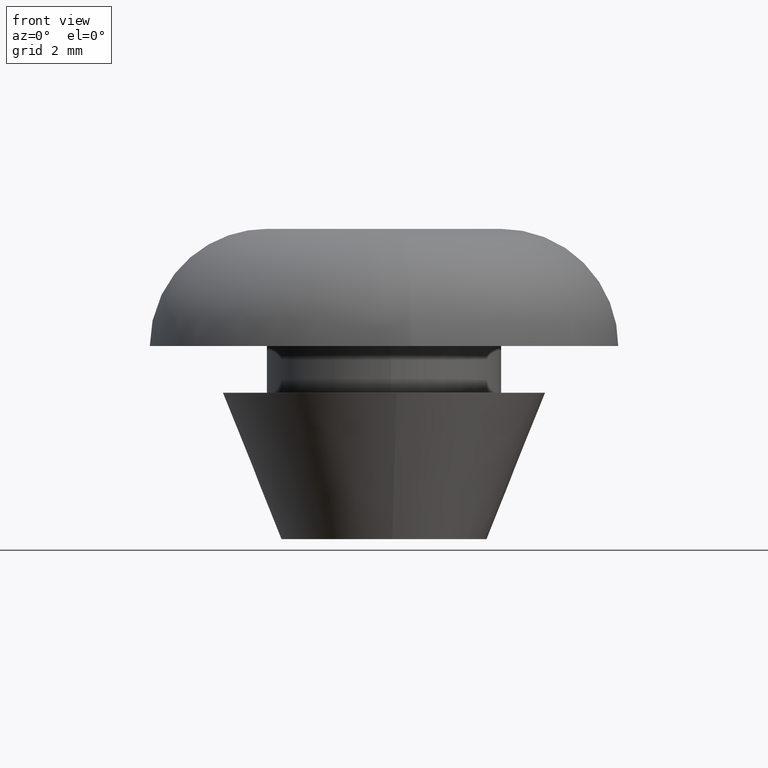
[diagram: clean part render]
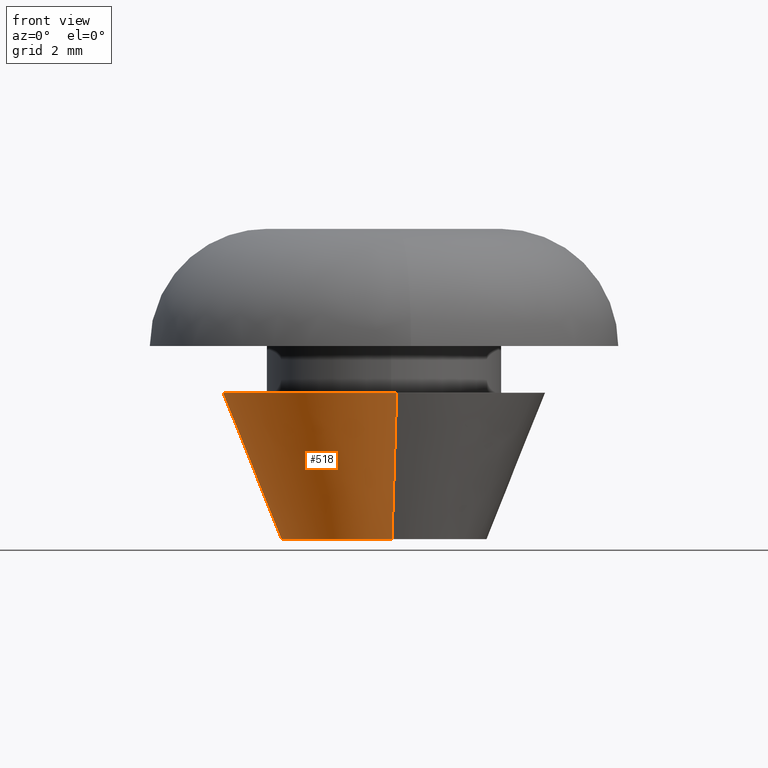
[diagram: same view with one face highlighted and labeled with its STEP entity id]
A machine part, front view. The second image highlights one B-rep face of the part: STEP entity #518.
In plain terms, the highlighted face is a freeform B-spline surface patch.
Its self-contained STEP definition (entity closure, byte-faithful):
#416=CARTESIAN_POINT('',(-0.222321621183772,3.443170993714569,-0.125000000000000));
#417=CARTESIAN_POINT('',(-0.246432124522197,3.441273455949432,-0.125000000000000));
#418=CARTESIAN_POINT('',(-3.710048681640357,3.168680921118223,-0.125000000000000));
#419=CARTESIAN_POINT('',(-3.439364801379290,-0.270683880261067,-0.125000000000000));
#420=CARTESIAN_POINT('',(-3.168680921118223,-3.710048681640357,-0.125000000000000));
#421=CARTESIAN_POINT('',(0.294932292382481,-3.437456409957548,-0.125000000000000));
#422=CARTESIAN_POINT('',(0.319039490993328,-3.435559132280113,-0.125000000000000));
#423=CARTESIAN_POINT('',(-0.357728376694613,5.540261733002319,5.128125000000003));
#424=CARTESIAN_POINT('',(-0.396523574276477,5.537208484736025,5.128124999999998));
#425=CARTESIAN_POINT('',(-5.969683404045228,5.098591293726822,5.128125000000001));
#426=CARTESIAN_POINT('',(-5.534137348886025,-0.435546055159203,5.128125000000001));
#427=CARTESIAN_POINT('',(-5.098591293726822,-5.969683404045228,5.128125000000001));
#428=CARTESIAN_POINT('',(0.474563155967608,-5.531066636457054,5.128125000000000));
#429=CARTESIAN_POINT('',(0.513353036051220,-5.528013806686950,5.128124999999999));
#437=(BOUNDED_SURFACE()B_SPLINE_SURFACE(2,1,((#416,#423),(#417,#424),(#418,#425),(#419,#426),(#420,#427),(#421,#428),(#422,#429)),.UNSPECIFIED.,.F.,.F.,.U.)B_SPLINE_SURFACE_WITH_KNOTS((3,1,2,1,3),(2,2),(0.0,0.091986763704840,9.289598916199411,18.487211068693981,18.579185112933100),(0.0,5.657865924875689),.UNSPECIFIED.)GEOMETRIC_REPRESENTATION_ITEM()RATIONAL_B_SPLINE_SURFACE(((1.005858542165737,1.005858542165737),(1.002929271082869,1.002929271082869),(0.707106781186548,0.707106781186548),(1.0,1.0),(0.707106781186548,0.707106781186548),(1.002928866038038,1.002928866038038),(1.005857732076076,1.005857732076076)))REPRESENTATION_ITEM('')SURFACE());
#438=CARTESIAN_POINT('',(-3.500000000000000,0.0,0.0));
#439=VERTEX_POINT('',#438);
#440=CARTESIAN_POINT('',(-0.274600980489155,3.489208997300468,-0.000005312372791));
#441=VERTEX_POINT('',#440);
#442=CARTESIAN_POINT('',(-3.500000000000000,0.0,0.0));
#443=CARTESIAN_POINT('',(-3.499999916640751,3.235370951957149,-0.000002656186396));
#444=CARTESIAN_POINT('',(-0.274600980489155,3.489208997300468,-0.000005312372791));
#452=(BOUNDED_CURVE()B_SPLINE_CURVE(2,(#442,#443,#444),.UNSPECIFIED.,.F.,.U.)B_SPLINE_CURVE_WITH_KNOTS((3,3),(0.0,0.236331580075702),.UNSPECIFIED.)CURVE()GEOMETRIC_REPRESENTATION_ITEM()RATIONAL_B_SPLINE_CURVE((1.0,0.723120331217434,0.969723939348634))REPRESENTATION_ITEM(''));
#453=EDGE_CURVE('',#439,#441,#452,.T.);
#454=ORIENTED_EDGE('',*,*,#453,.F.);
#455=CARTESIAN_POINT('',(0.274600980489155,-3.489208997300468,-0.000005312372791));
#456=VERTEX_POINT('',#455);
#457=CARTESIAN_POINT('',(0.274600980489156,-3.489208997300468,-0.000005312372791));
#458=CARTESIAN_POINT('',(0.137512353718483,-3.499997920065321,-0.000005215903538));
#459=CARTESIAN_POINT('',(-0.000000160415873,-3.499997961680607,-0.000005111543859));
#460=CARTESIAN_POINT('',(-3.500000077056623,-3.499999020882365,-0.000002455357463));
#461=CARTESIAN_POINT('',(-3.500000000000000,0.0,0.0));
#469=(BOUNDED_CURVE()B_SPLINE_CURVE(2,(#457,#458,#459,#460,#461),.UNSPECIFIED.,.F.,.U.)B_SPLINE_CURVE_WITH_KNOTS((3,2,3),(0.736331580075702,0.750000000000000,1.0),.UNSPECIFIED.)CURVE()GEOMETRIC_REPRESENTATION_ITEM()RATIONAL_B_SPLINE_CURVE((0.969723939348634,0.983986449969113,1.0,0.707106781186547,1.0))REPRESENTATION_ITEM(''));
#470=EDGE_CURVE('',#456,#439,#469,.T.);
#471=ORIENTED_EDGE('',*,*,#470,.F.);
#472=CARTESIAN_POINT('',(0.431523188758528,-5.483044809921816,4.999998329556744));
#473=VERTEX_POINT('',#472);
#474=CARTESIAN_POINT('',(0.274600980489155,-3.489208997300468,-0.000005312372791));
#475=CARTESIAN_POINT('',(0.431523188758528,-5.483044809921816,4.999998329556744));
#476=QUASI_UNIFORM_CURVE('',1,(#474,#475),.UNSPECIFIED.,.F.,.U.);
#477=EDGE_CURVE('',#456,#473,#476,.T.);
#478=ORIENTED_EDGE('',*,*,#477,.T.);
#479=CARTESIAN_POINT('',(-5.500000000000000,0.0,5.0));
#480=VERTEX_POINT('',#479);
#481=CARTESIAN_POINT('',(0.431523188758528,-5.483044809921816,4.999998329556744));
#482=CARTESIAN_POINT('',(0.216094640267148,-5.499999345978611,4.999998359891379));
#483=CARTESIAN_POINT('',(-0.000000050442510,-5.499999359064478,4.999998392707190));
#484=CARTESIAN_POINT('',(-5.500000024230313,-5.499999692123399,4.999999227928817));
#485=CARTESIAN_POINT('',(-5.500000000000000,0.0,5.0));
#493=(BOUNDED_CURVE()B_SPLINE_CURVE(2,(#481,#482,#483,#484,#485),.UNSPECIFIED.,.F.,.U.)B_SPLINE_CURVE_WITH_KNOTS((3,2,3),(0.736331356449855,0.750000000000000,1.0),.UNSPECIFIED.)CURVE()GEOMETRIC_REPRESENTATION_ITEM()RATIONAL_B_SPLINE_CURVE((0.969723472657849,0.983986187975137,1.0,0.707106781186548,1.0))REPRESENTATION_ITEM(''));
#494=EDGE_CURVE('',#473,#480,#493,.T.);
#495=ORIENTED_EDGE('',*,*,#494,.T.);
#496=CARTESIAN_POINT('',(-0.431523188758529,5.483044809921818,4.999998329556744));
#497=VERTEX_POINT('',#496);
#498=CARTESIAN_POINT('',(-5.500000000000000,0.0,5.0));
#499=CARTESIAN_POINT('',(-5.499999973787804,5.084149031616583,4.999999164778371));
#500=CARTESIAN_POINT('',(-0.431523188758529,5.483044809921819,4.999998329556744));
#508=(BOUNDED_CURVE()B_SPLINE_CURVE(2,(#498,#499,#500),.UNSPECIFIED.,.F.,.U.)B_SPLINE_CURVE_WITH_KNOTS((3,3),(0.0,0.236331356449855),.UNSPECIFIED.)CURVE()GEOMETRIC_REPRESENTATION_ITEM()RATIONAL_B_SPLINE_CURVE((1.0,0.723120593211411,0.969723472657849))REPRESENTATION_ITEM(''));
#509=EDGE_CURVE('',#480,#497,#508,.T.);
#510=ORIENTED_EDGE('',*,*,#509,.T.);
#511=CARTESIAN_POINT('',(-0.274600980489155,3.489208997300468,-0.000005312372791));
#512=CARTESIAN_POINT('',(-0.431523188758529,5.483044809921818,4.999998329556744));
#513=QUASI_UNIFORM_CURVE('',1,(#511,#512),.UNSPECIFIED.,.F.,.U.);
#514=EDGE_CURVE('',#441,#497,#513,.T.);
#515=ORIENTED_EDGE('',*,*,#514,.F.);
#516=EDGE_LOOP('',(#454,#471,#478,#495,#510,#515));
#517=FACE_OUTER_BOUND('',#516,.T.);
#518=ADVANCED_FACE('',(#517),#437,.T.);